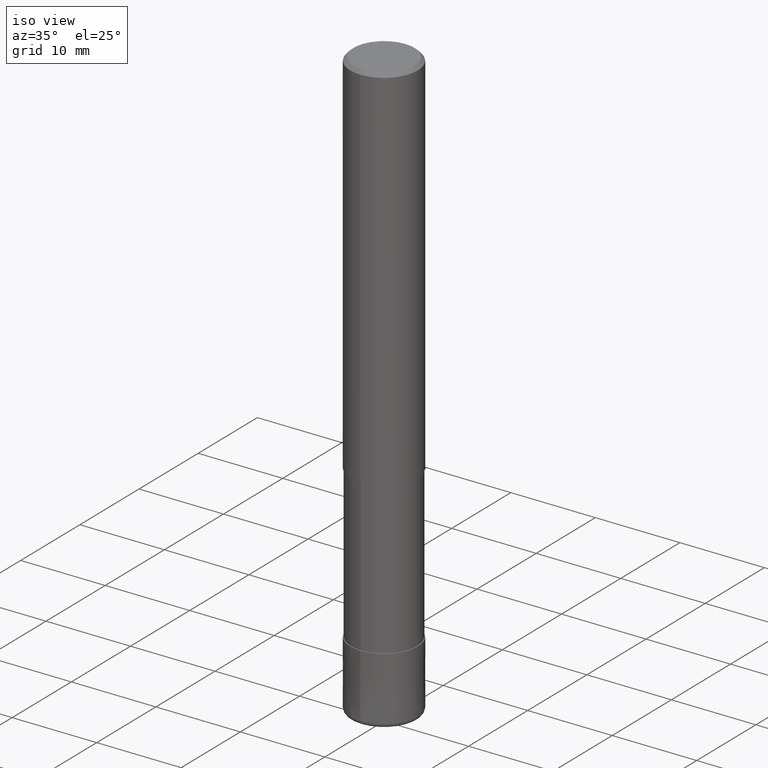
[diagram: clean part render]
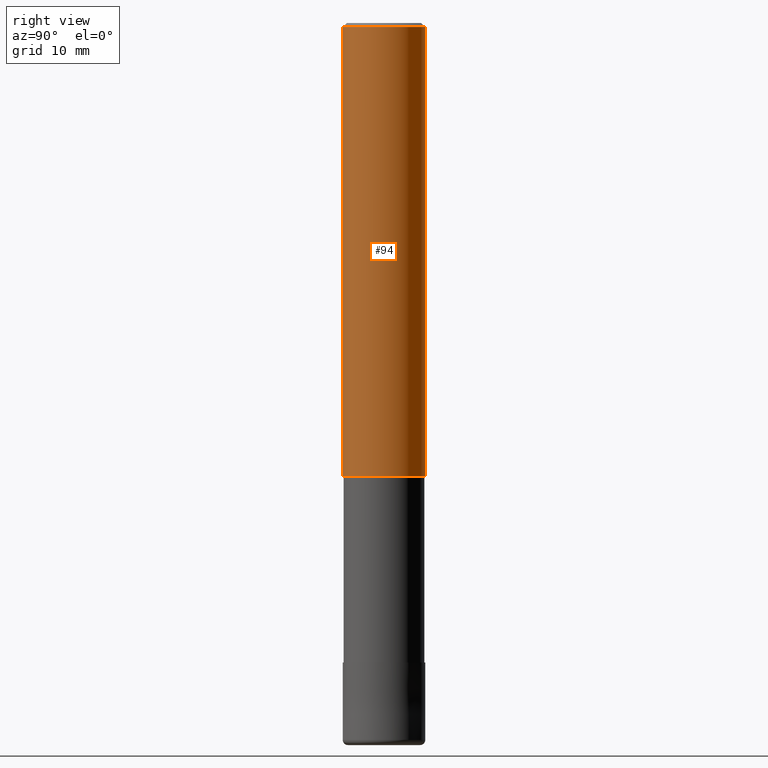
[diagram: tour spotlight — one face highlighted and labeled with its STEP entity id]
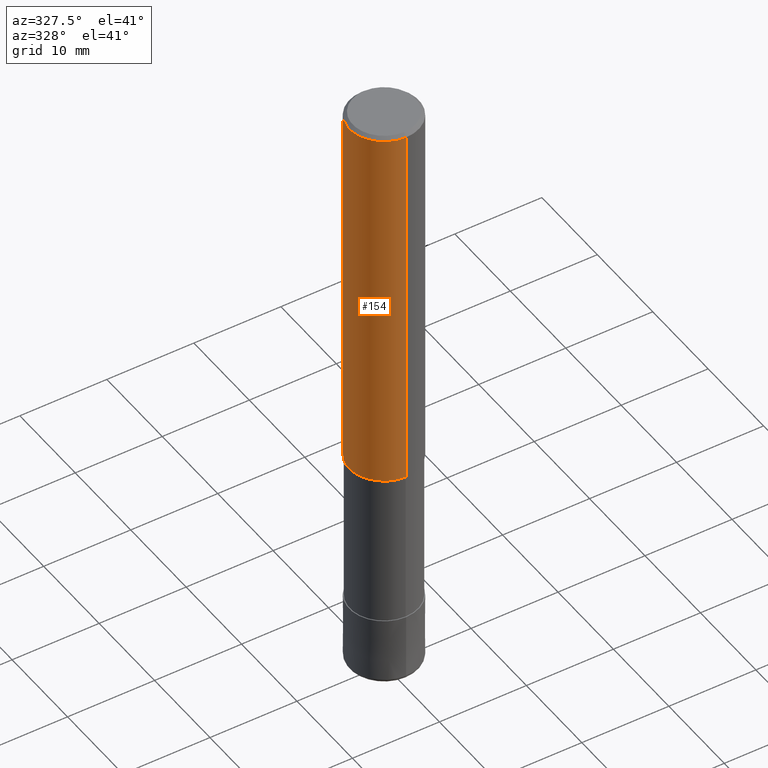
[diagram: tour spotlight — one face highlighted and labeled with its STEP entity id]
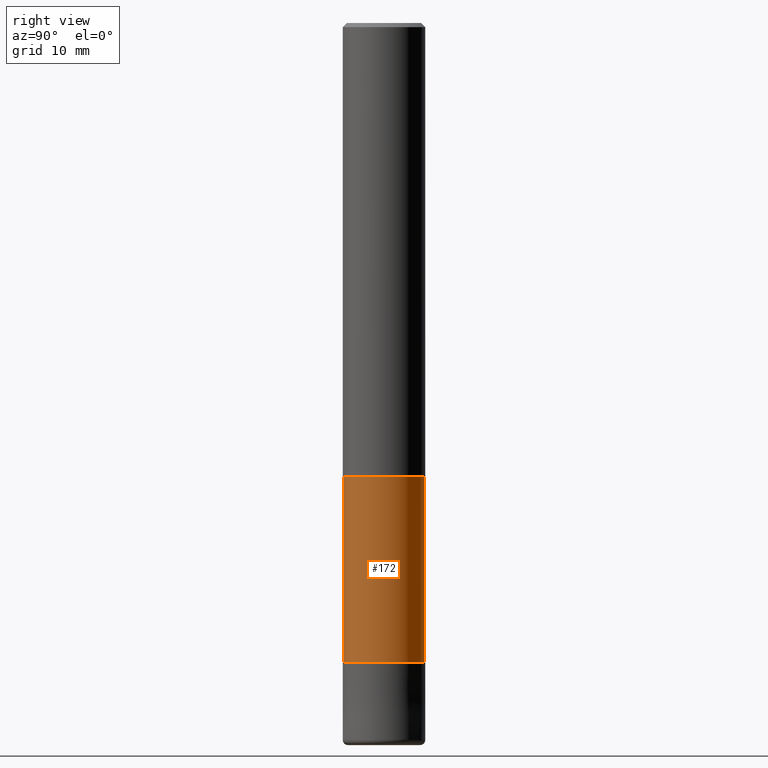
[diagram: tour spotlight — one face highlighted and labeled with its STEP entity id]
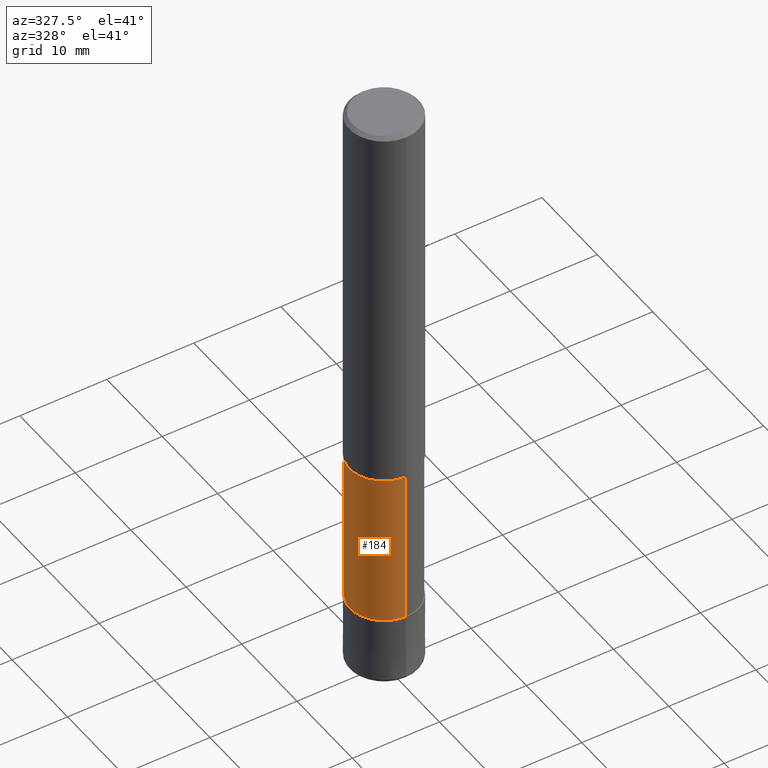
[diagram: tour spotlight — one face highlighted and labeled with its STEP entity id]
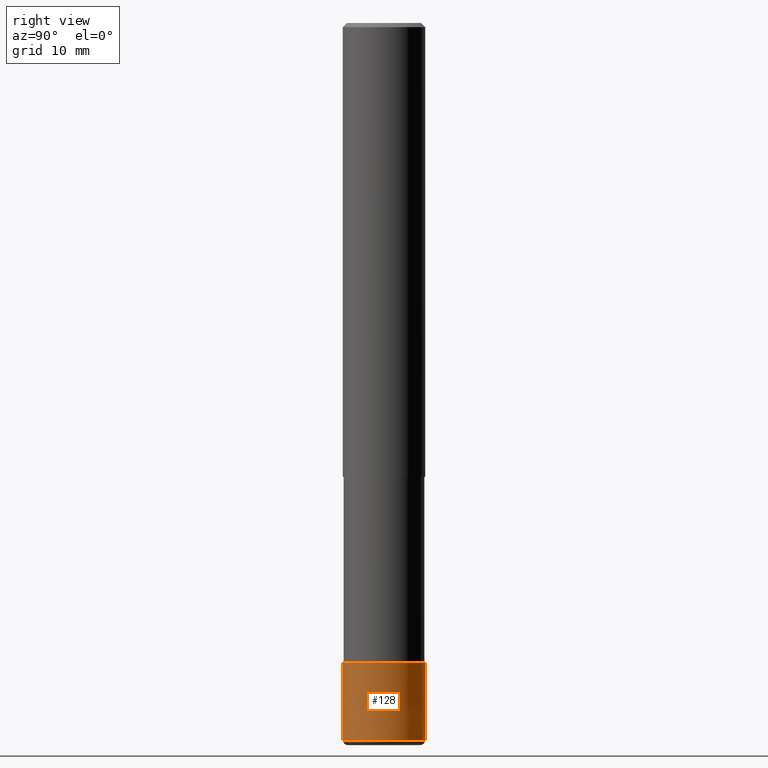
[diagram: tour spotlight — one face highlighted and labeled with its STEP entity id]
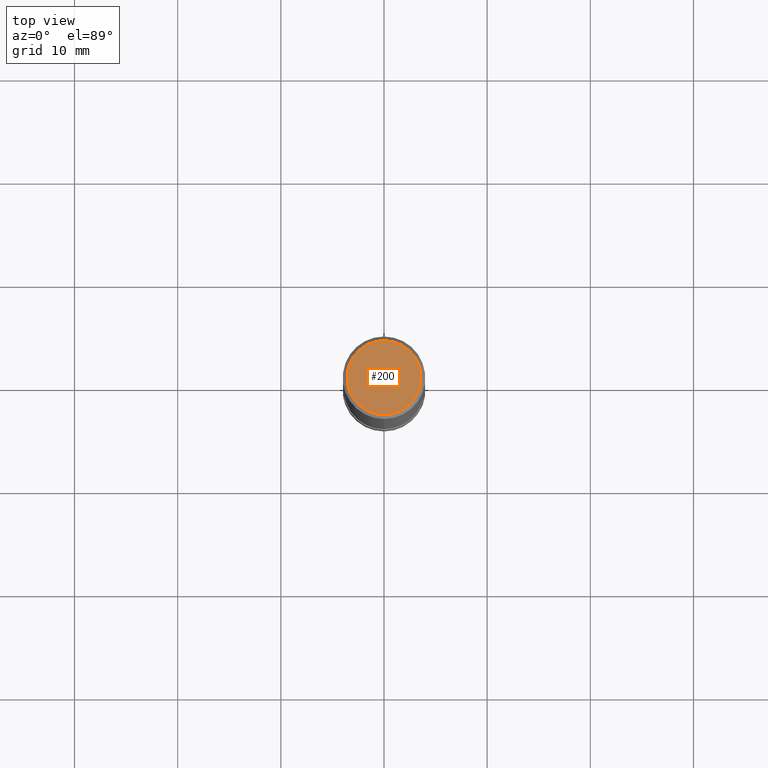
[diagram: tour spotlight — one face highlighted and labeled with its STEP entity id]
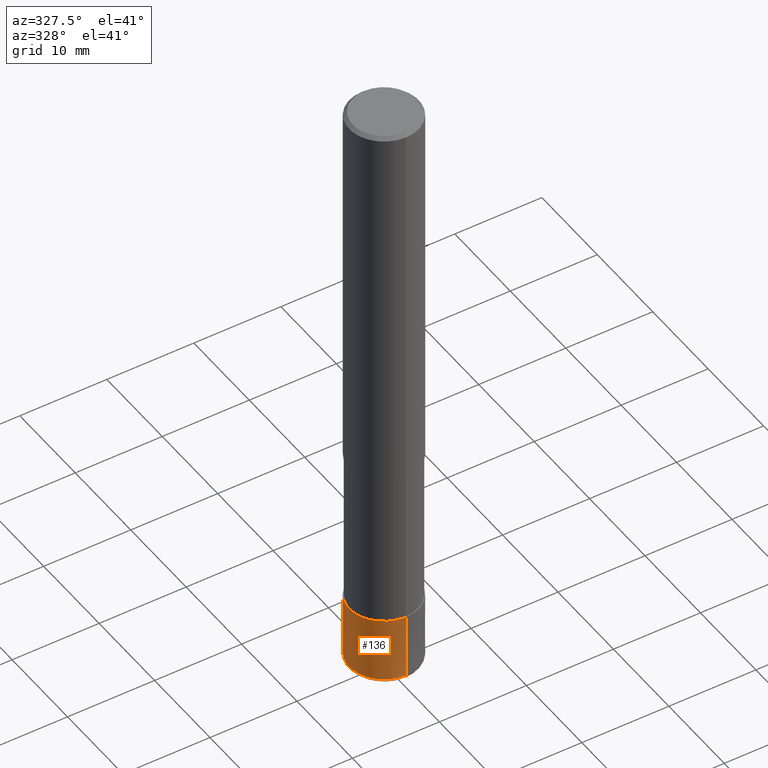
[diagram: tour spotlight — one face highlighted and labeled with its STEP entity id]
A machine part: a face-by-face anatomy tour. The part has 15 B-rep faces; the first image is the clean iso view, then the 7 largest visible faces are spotlighted one at a time (largest first), each with its STEP entity span.

Face 1 — right view, entity #94. In plain terms, the highlighted cylindrical surface (partial cylindrical patch) has radius 4 mm, axis along (-0, -0, 1).
Definition (entity closure, byte-faithful):
#94=ADVANCED_FACE('',(#231),#232,.T.);
#108=VERTEX_POINT('',#247);
#124=EDGE_CURVE('',#108,#166,#263,.T.);
#130=EDGE_CURVE('',#192,#176,#271,.T.);
#140=EDGE_CURVE('',#176,#108,#283,.T.);
#166=VERTEX_POINT('',#313);
#176=VERTEX_POINT('',#326);
#192=VERTEX_POINT('',#343);
#196=EDGE_CURVE('',#192,#166,#347,.T.);
#231=FACE_OUTER_BOUND('',#376,.T.);
#232=CYLINDRICAL_SURFACE('',#377,4.0);
#247=CARTESIAN_POINT('',(4.89842541528951E-016,-4.0,-44.0));
#263=LINE('',#417,#418);
#271=LINE('',#427,#428);
#283=CIRCLE('',#441,4.0);
#313=CARTESIAN_POINT('',(4.89842541528951E-016,-4.0,-0.399999999999999));
#326=CARTESIAN_POINT('',(0.0,4.0,-44.0));
#343=CARTESIAN_POINT('',(0.0,4.0,-0.399999999999999));
#347=CIRCLE('',#521,4.0);
#376=EDGE_LOOP('',(#541,#542,#543,#544));
#377=AXIS2_PLACEMENT_3D('',#545,#546,#547);
#417=CARTESIAN_POINT('',(4.89842541528951E-016,-4.0,-22.2));
#418=VECTOR('',#574,1.0);
#427=CARTESIAN_POINT('',(-4.89842541528951E-016,4.0,-22.2));
#428=VECTOR('',#589,1.0);
#441=AXIS2_PLACEMENT_3D('',#604,#605,#606);
#521=AXIS2_PLACEMENT_3D('',#690,#691,#692);
#541=ORIENTED_EDGE('',*,*,#130,.F.);
#542=ORIENTED_EDGE('',*,*,#196,.T.);
#543=ORIENTED_EDGE('',*,*,#124,.F.);
#544=ORIENTED_EDGE('',*,*,#140,.F.);
#545=CARTESIAN_POINT('',(0.0,0.0,-22.2));
#546=DIRECTION('',(-0.0,-0.0,1.0));
#547=DIRECTION('',(0.0,1.0,0.0));
#574=DIRECTION('',(-0.0,-0.0,1.0));
#589=DIRECTION('',(0.0,0.0,-1.0));
#604=CARTESIAN_POINT('',(0.0,0.0,-44.0));
#605=DIRECTION('',(0.0,0.0,-1.0));
#606=DIRECTION('',(0.0,1.0,0.0));
#690=CARTESIAN_POINT('',(0.0,0.0,-0.399999999999999));
#691=DIRECTION('',(0.0,0.0,-1.0));
#692=DIRECTION('',(0.0,1.0,0.0));

Face 2 — auxiliary view, entity #154. In plain terms, the highlighted cylindrical surface (partial cylindrical patch) has radius 4 mm, axis along (-0, -0, 1).
Definition (entity closure, byte-faithful):
#108=VERTEX_POINT('',#247);
#114=EDGE_CURVE('',#108,#176,#253,.T.);
#124=EDGE_CURVE('',#108,#166,#263,.T.);
#130=EDGE_CURVE('',#192,#176,#271,.T.);
#154=ADVANCED_FACE('',(#300),#301,.T.);
#166=VERTEX_POINT('',#313);
#176=VERTEX_POINT('',#326);
#192=VERTEX_POINT('',#343);
#208=EDGE_CURVE('',#166,#192,#361,.T.);
#247=CARTESIAN_POINT('',(4.89842541528951E-016,-4.0,-44.0));
#253=CIRCLE('',#403,4.0);
#263=LINE('',#417,#418);
#271=LINE('',#427,#428);
#300=FACE_OUTER_BOUND('',#460,.T.);
#301=CYLINDRICAL_SURFACE('',#461,4.0);
#313=CARTESIAN_POINT('',(4.89842541528951E-016,-4.0,-0.399999999999999));
#326=CARTESIAN_POINT('',(0.0,4.0,-44.0));
#343=CARTESIAN_POINT('',(0.0,4.0,-0.399999999999999));
#361=CIRCLE('',#538,4.0);
#403=AXIS2_PLACEMENT_3D('',#567,#568,#569);
#417=CARTESIAN_POINT('',(4.89842541528951E-016,-4.0,-22.2));
#418=VECTOR('',#574,1.0);
#427=CARTESIAN_POINT('',(-4.89842541528951E-016,4.0,-22.2));
#428=VECTOR('',#589,1.0);
#460=EDGE_LOOP('',(#636,#637,#638,#639));
#461=AXIS2_PLACEMENT_3D('',#640,#641,#642);
#538=AXIS2_PLACEMENT_3D('',#713,#714,#715);
#567=CARTESIAN_POINT('',(0.0,0.0,-44.0));
#568=DIRECTION('',(0.0,0.0,-1.0));
#569=DIRECTION('',(0.0,1.0,0.0));
#574=DIRECTION('',(-0.0,-0.0,1.0));
#589=DIRECTION('',(0.0,0.0,-1.0));
#636=ORIENTED_EDGE('',*,*,#130,.T.);
#637=ORIENTED_EDGE('',*,*,#114,.F.);
#638=ORIENTED_EDGE('',*,*,#124,.T.);
#639=ORIENTED_EDGE('',*,*,#208,.T.);
#640=CARTESIAN_POINT('',(0.0,0.0,-22.2));
#641=DIRECTION('',(-0.0,-0.0,1.0));
#642=DIRECTION('',(0.0,1.0,0.0));
#713=CARTESIAN_POINT('',(0.0,0.0,-0.399999999999999));
#714=DIRECTION('',(0.0,0.0,-1.0));
#715=DIRECTION('',(0.0,1.0,0.0));

Face 3 — right view, entity #172. In plain terms, the highlighted cylindrical surface (partial cylindrical patch) has radius 3.9099 mm, axis along (-0, -0, 1).
Definition (entity closure, byte-faithful):
#98=EDGE_CURVE('',#122,#190,#237,.T.);
#104=EDGE_CURVE('',#116,#190,#243,.T.);
#116=VERTEX_POINT('',#255);
#122=VERTEX_POINT('',#261);
#144=EDGE_CURVE('',#204,#122,#288,.T.);
#156=EDGE_CURVE('',#116,#204,#303,.T.);
#172=ADVANCED_FACE('',(#319),#320,.T.);
#190=VERTEX_POINT('',#341);
#204=VERTEX_POINT('',#357);
#237=LINE('',#383,#384);
#243=CIRCLE('',#391,3.90995);
#255=CARTESIAN_POINT('',(0.0,3.90995,-44.0));
#261=CARTESIAN_POINT('',(4.7881496131278E-016,-3.90995,-62.0));
#288=CIRCLE('',#447,3.90995);
#303=LINE('',#464,#465);
#319=FACE_OUTER_BOUND('',#485,.T.);
#320=CYLINDRICAL_SURFACE('',#486,3.90995);
#341=CARTESIAN_POINT('',(4.7881496131278E-016,-3.90995,-44.0));
#357=CARTESIAN_POINT('',(0.0,3.90995,-62.0));
#383=CARTESIAN_POINT('',(4.7881496131278E-016,-3.90995,-53.0));
#384=VECTOR('',#556,1.0);
#391=AXIS2_PLACEMENT_3D('',#561,#562,#563);
#447=AXIS2_PLACEMENT_3D('',#615,#616,#617);
#464=CARTESIAN_POINT('',(-4.7881496131278E-016,3.90995,-53.0));
#465=VECTOR('',#643,1.0);
#485=EDGE_LOOP('',(#656,#657,#658,#659));
#486=AXIS2_PLACEMENT_3D('',#660,#661,#662);
#556=DIRECTION('',(-0.0,-0.0,1.0));
#561=CARTESIAN_POINT('',(0.0,0.0,-44.0));
#562=DIRECTION('',(0.0,0.0,-1.0));
#563=DIRECTION('',(0.0,1.0,0.0));
#615=CARTESIAN_POINT('',(0.0,0.0,-62.0));
#616=DIRECTION('',(0.0,0.0,-1.0));
#617=DIRECTION('',(0.0,1.0,0.0));
#643=DIRECTION('',(0.0,0.0,-1.0));
#656=ORIENTED_EDGE('',*,*,#156,.F.);
#657=ORIENTED_EDGE('',*,*,#104,.T.);
#658=ORIENTED_EDGE('',*,*,#98,.F.);
#659=ORIENTED_EDGE('',*,*,#144,.F.);
#660=CARTESIAN_POINT('',(0.0,0.0,-53.0));
#661=DIRECTION('',(-0.0,-0.0,1.0));
#662=DIRECTION('',(0.0,1.0,0.0));

Face 4 — auxiliary view, entity #184. In plain terms, the highlighted cylindrical surface (partial cylindrical patch) has radius 3.9099 mm, axis along (-0, -0, 1).
Definition (entity closure, byte-faithful):
#98=EDGE_CURVE('',#122,#190,#237,.T.);
#116=VERTEX_POINT('',#255);
#122=VERTEX_POINT('',#261);
#152=EDGE_CURVE('',#122,#204,#298,.T.);
#156=EDGE_CURVE('',#116,#204,#303,.T.);
#182=EDGE_CURVE('',#190,#116,#332,.T.);
#184=ADVANCED_FACE('',(#334),#335,.T.);
#190=VERTEX_POINT('',#341);
#204=VERTEX_POINT('',#357);
#237=LINE('',#383,#384);
#255=CARTESIAN_POINT('',(0.0,3.90995,-44.0));
#261=CARTESIAN_POINT('',(4.7881496131278E-016,-3.90995,-62.0));
#298=CIRCLE('',#458,3.90995);
#303=LINE('',#464,#465);
#332=CIRCLE('',#502,3.90995);
#334=FACE_OUTER_BOUND('',#504,.T.);
#335=CYLINDRICAL_SURFACE('',#505,3.90995);
#341=CARTESIAN_POINT('',(4.7881496131278E-016,-3.90995,-44.0));
#357=CARTESIAN_POINT('',(0.0,3.90995,-62.0));
#383=CARTESIAN_POINT('',(4.7881496131278E-016,-3.90995,-53.0));
#384=VECTOR('',#556,1.0);
#458=AXIS2_PLACEMENT_3D('',#632,#633,#634);
#464=CARTESIAN_POINT('',(-4.7881496131278E-016,3.90995,-53.0));
#465=VECTOR('',#643,1.0);
#502=AXIS2_PLACEMENT_3D('',#675,#676,#677);
#504=EDGE_LOOP('',(#679,#680,#681,#682));
#505=AXIS2_PLACEMENT_3D('',#683,#684,#685);
#556=DIRECTION('',(-0.0,-0.0,1.0));
#632=CARTESIAN_POINT('',(0.0,0.0,-62.0));
#633=DIRECTION('',(0.0,0.0,-1.0));
#634=DIRECTION('',(0.0,1.0,0.0));
#643=DIRECTION('',(0.0,0.0,-1.0));
#675=CARTESIAN_POINT('',(0.0,0.0,-44.0));
#676=DIRECTION('',(0.0,0.0,-1.0));
#677=DIRECTION('',(0.0,1.0,0.0));
#679=ORIENTED_EDGE('',*,*,#156,.T.);
#680=ORIENTED_EDGE('',*,*,#152,.F.);
#681=ORIENTED_EDGE('',*,*,#98,.T.);
#682=ORIENTED_EDGE('',*,*,#182,.T.);
#683=CARTESIAN_POINT('',(0.0,0.0,-53.0));
#684=DIRECTION('',(-0.0,-0.0,1.0));
#685=DIRECTION('',(0.0,1.0,0.0));

Face 5 — right view, entity #128. In plain terms, the highlighted conical surface has half-angle 0.001 deg.
Definition (entity closure, byte-faithful):
#92=VERTEX_POINT('',#229);
#110=VERTEX_POINT('',#249);
#120=EDGE_CURVE('',#138,#110,#259,.T.);
#128=ADVANCED_FACE('',(#268),#269,.T.);
#138=VERTEX_POINT('',#281);
#162=EDGE_CURVE('',#194,#110,#309,.T.);
#186=EDGE_CURVE('',#194,#92,#337,.T.);
#194=VERTEX_POINT('',#345);
#202=EDGE_CURVE('',#92,#138,#355,.T.);
#229=CARTESIAN_POINT('',(0.0,4.0,-69.5));
#249=CARTESIAN_POINT('',(4.89830295465413E-016,-3.9999,-62.0));
#259=LINE('',#411,#412);
#268=FACE_OUTER_BOUND('',#423,.T.);
#269=CONICAL_SURFACE('',#424,3.99995,1.33333333325713E-005);
#281=CARTESIAN_POINT('',(4.89842541528951E-016,-4.0,-69.5));
#309=CIRCLE('',#475,3.9999);
#337=LINE('',#508,#509);
#345=CARTESIAN_POINT('',(0.0,3.9999,-62.0));
#355=CIRCLE('',#530,4.0);
#411=CARTESIAN_POINT('',(4.89836418497182E-016,-3.99995,-65.75));
#412=VECTOR('',#573,1.0);
#423=EDGE_LOOP('',(#582,#583,#584,#585));
#424=AXIS2_PLACEMENT_3D('',#586,#587,#588);
#475=AXIS2_PLACEMENT_3D('',#648,#649,#650);
#508=CARTESIAN_POINT('',(-4.89836418497182E-016,3.99995,-65.75));
#509=VECTOR('',#686,1.0);
#530=AXIS2_PLACEMENT_3D('',#707,#708,#709);
#573=DIRECTION('',(-1.63280847162148E-021,1.33333333321763E-005,0.999999999911111));
#582=ORIENTED_EDGE('',*,*,#186,.F.);
#583=ORIENTED_EDGE('',*,*,#162,.T.);
#584=ORIENTED_EDGE('',*,*,#120,.F.);
#585=ORIENTED_EDGE('',*,*,#202,.F.);
#586=CARTESIAN_POINT('',(0.0,0.0,-65.75));
#587=DIRECTION('',(0.0,-0.0,-1.0));
#588=DIRECTION('',(0.0,1.0,0.0));
#648=CARTESIAN_POINT('',(0.0,0.0,-62.0));
#649=DIRECTION('',(0.0,0.0,-1.0));
#650=DIRECTION('',(0.0,1.0,0.0));
#686=DIRECTION('',(-1.63280847162148E-021,1.33333333321763E-005,-0.999999999911111));
#707=CARTESIAN_POINT('',(0.0,0.0,-69.5));
#708=DIRECTION('',(0.0,0.0,-1.0));
#709=DIRECTION('',(0.0,1.0,0.0));

Face 6 — top view, entity #200. In plain terms, the highlighted planar face has unit normal (-0, 0, 1).
Definition (entity closure, byte-faithful):
#118=EDGE_CURVE('',#168,#148,#257,.T.);
#148=VERTEX_POINT('',#293);
#168=VERTEX_POINT('',#315);
#200=ADVANCED_FACE('',(#352),#353,.T.);
#206=EDGE_CURVE('',#148,#168,#359,.T.);
#257=CIRCLE('',#408,3.6);
#293=CARTESIAN_POINT('',(0.0,3.6,0.0));
#315=CARTESIAN_POINT('',(4.40858287376056E-016,-3.6,0.0));
#352=FACE_OUTER_BOUND('',#526,.T.);
#353=PLANE('',#527);
#359=CIRCLE('',#535,3.6);
#408=AXIS2_PLACEMENT_3D('',#570,#571,#572);
#526=EDGE_LOOP('',(#702,#703));
#527=AXIS2_PLACEMENT_3D('',#704,#705,#706);
#535=AXIS2_PLACEMENT_3D('',#710,#711,#712);
#570=CARTESIAN_POINT('',(0.0,0.0,0.0));
#571=DIRECTION('',(0.0,0.0,-1.0));
#572=DIRECTION('',(0.0,1.0,0.0));
#702=ORIENTED_EDGE('',*,*,#206,.F.);
#703=ORIENTED_EDGE('',*,*,#118,.F.);
#704=CARTESIAN_POINT('',(0.0,1.8,0.0));
#705=DIRECTION('',(-0.0,0.0,1.0));
#706=DIRECTION('',(0.0,-1.0,0.0));
#710=CARTESIAN_POINT('',(0.0,0.0,0.0));
#711=DIRECTION('',(0.0,0.0,-1.0));
#712=DIRECTION('',(0.0,1.0,0.0));

Face 7 — auxiliary view, entity #136. In plain terms, the highlighted conical surface has half-angle 0.001 deg.
Definition (entity closure, byte-faithful):
#92=VERTEX_POINT('',#229);
#100=EDGE_CURVE('',#110,#194,#239,.T.);
#110=VERTEX_POINT('',#249);
#120=EDGE_CURVE('',#138,#110,#259,.T.);
#136=ADVANCED_FACE('',(#278),#279,.T.);
#138=VERTEX_POINT('',#281);
#170=EDGE_CURVE('',#138,#92,#317,.T.);
#186=EDGE_CURVE('',#194,#92,#337,.T.);
#194=VERTEX_POINT('',#345);
#229=CARTESIAN_POINT('',(0.0,4.0,-69.5));
#239=CIRCLE('',#387,3.9999);
#249=CARTESIAN_POINT('',(4.89830295465413E-016,-3.9999,-62.0));
#259=LINE('',#411,#412);
#278=FACE_OUTER_BOUND('',#435,.T.);
#279=CONICAL_SURFACE('',#436,3.99995,1.33333333325713E-005);
#281=CARTESIAN_POINT('',(4.89842541528951E-016,-4.0,-69.5));
#317=CIRCLE('',#483,4.0);
#337=LINE('',#508,#509);
#345=CARTESIAN_POINT('',(0.0,3.9999,-62.0));
#387=AXIS2_PLACEMENT_3D('',#557,#558,#559);
#411=CARTESIAN_POINT('',(4.89836418497182E-016,-3.99995,-65.75));
#412=VECTOR('',#573,1.0);
#435=EDGE_LOOP('',(#597,#598,#599,#600));
#436=AXIS2_PLACEMENT_3D('',#601,#602,#603);
#483=AXIS2_PLACEMENT_3D('',#652,#653,#654);
#508=CARTESIAN_POINT('',(-4.89836418497182E-016,3.99995,-65.75));
#509=VECTOR('',#686,1.0);
#557=CARTESIAN_POINT('',(0.0,0.0,-62.0));
#558=DIRECTION('',(0.0,0.0,-1.0));
#559=DIRECTION('',(0.0,1.0,0.0));
#573=DIRECTION('',(-1.63280847162148E-021,1.33333333321763E-005,0.999999999911111));
#597=ORIENTED_EDGE('',*,*,#186,.T.);
#598=ORIENTED_EDGE('',*,*,#170,.F.);
#599=ORIENTED_EDGE('',*,*,#120,.T.);
#600=ORIENTED_EDGE('',*,*,#100,.T.);
#601=CARTESIAN_POINT('',(0.0,0.0,-65.75));
#602=DIRECTION('',(0.0,-0.0,-1.0));
#603=DIRECTION('',(0.0,1.0,0.0));
#652=CARTESIAN_POINT('',(0.0,0.0,-69.5));
#653=DIRECTION('',(0.0,0.0,-1.0));
#654=DIRECTION('',(0.0,1.0,0.0));
#686=DIRECTION('',(-1.63280847162148E-021,1.33333333321763E-005,-0.999999999911111));